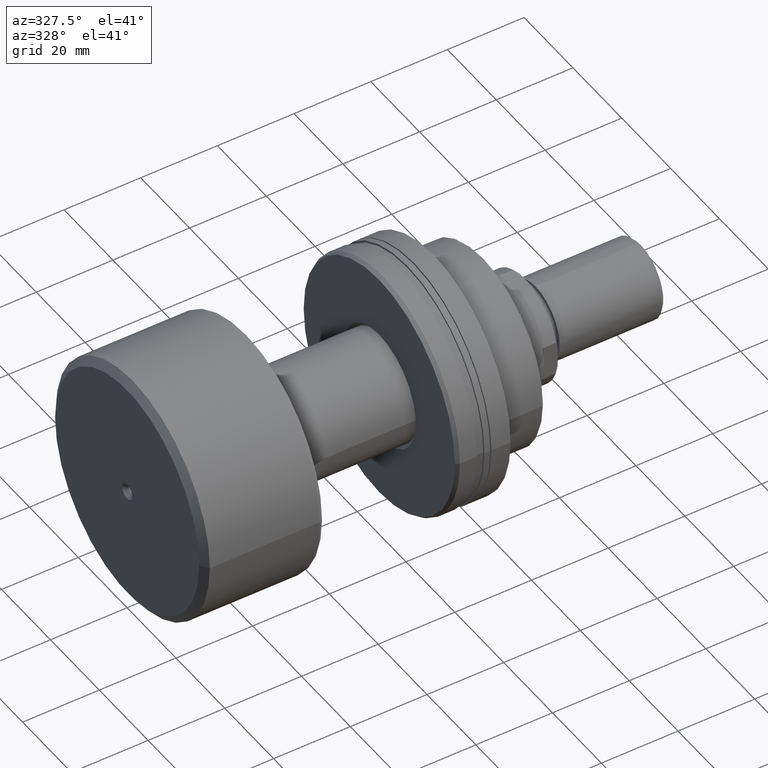
[diagram: clean part render]
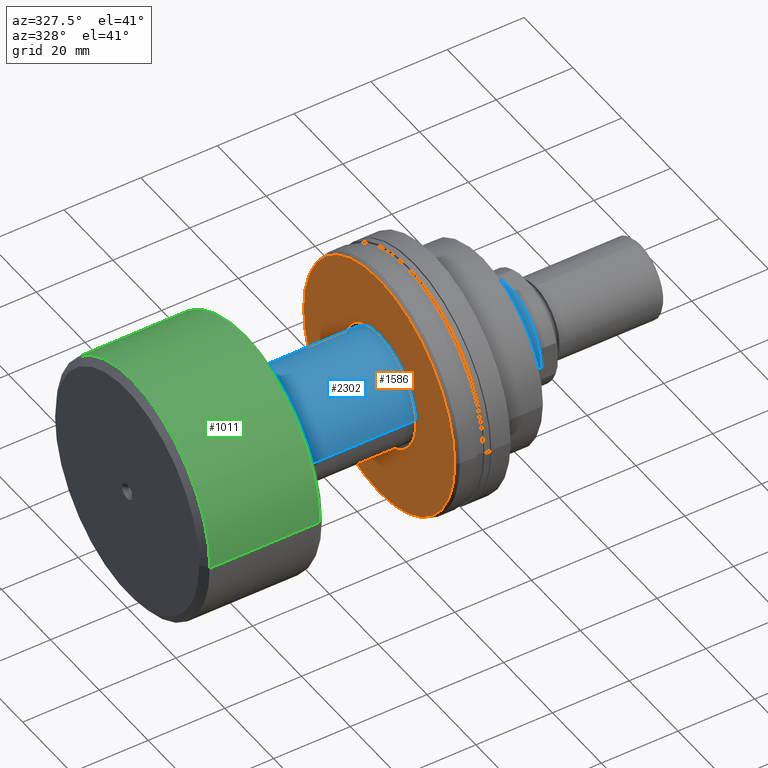
[diagram: same view with three faces highlighted in distinct colors, each labeled with its STEP entity id]
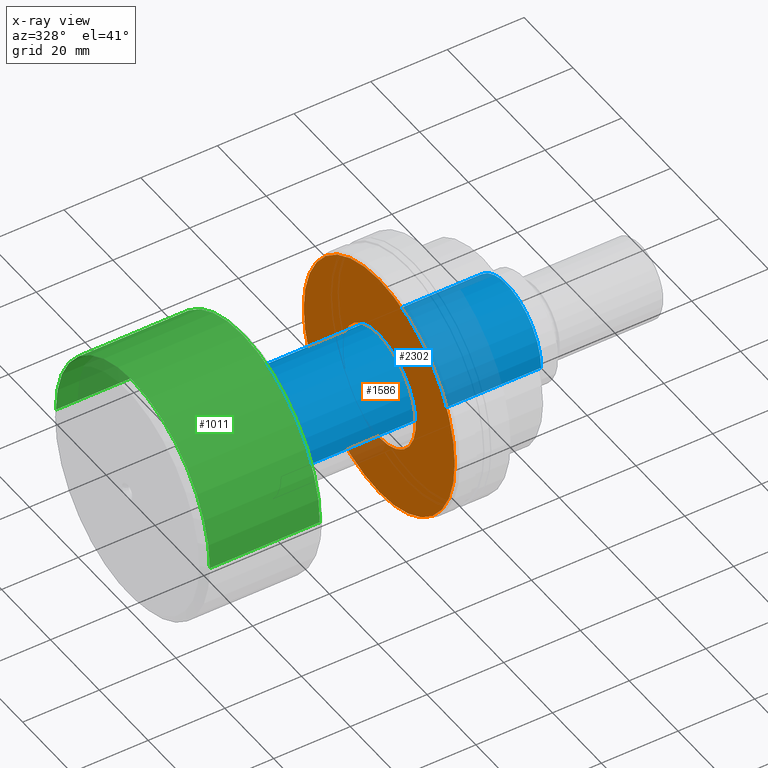
[diagram: x-ray of the same camera — body ghosted, the three highlighted faces saturated]
A machine part, auxiliary view with three faces highlighted in distinct colors.
The next image is the same camera in x-ray (body ghosted, the three faces saturated) — at least one of them is partly hidden behind the body in this view.
Their STEP definitions:

[orange] entity #1586 — the highlighted planar face has unit normal (1, 0, 0).
#80 = VERTEX_POINT ( 'NONE', #2254 ) ;
#247 = CARTESIAN_POINT ( 'NONE',  ( -32.20000000000005258, -3.708233295962754354E-15, 0.000000000000000000 ) ) ;
#312 = DIRECTION ( 'NONE',  ( -1.850371707708588449E-15, 1.000000000000000000, 0.000000000000000000 ) ) ;
#332 = DIRECTION ( 'NONE',  ( -1.931394410353556421E-15, 1.000000000000000000, 0.000000000000000000 ) ) ;
#352 = AXIS2_PLACEMENT_3D ( 'NONE', #247, #1961, #1097 ) ;
#378 = DIRECTION ( 'NONE',  ( 1.000000000000000000, 1.931394410353556421E-15, -0.000000000000000000 ) ) ;
#393 = DIRECTION ( 'NONE',  ( -1.850371707708588449E-15, 1.000000000000000000, 0.000000000000000000 ) ) ;
#474 = AXIS2_PLACEMENT_3D ( 'NONE', #1437, #1617, #332 ) ;
#550 = FACE_BOUND ( 'NONE', #2666, .T. ) ;
#889 = DIRECTION ( 'NONE',  ( 1.000000000000000000, 1.931394410353556421E-15, -0.000000000000000000 ) ) ;
#925 = ORIENTED_EDGE ( 'NONE', *, *, #1165, .T. ) ;
#963 = CARTESIAN_POINT ( 'NONE',  ( -32.20000000000001705, 0.000000000000000000, 0.000000000000000000 ) ) ;
#1020 = CIRCLE ( 'NONE', #1148, 15.00000000000004796 ) ;
#1022 = CIRCLE ( 'NONE', #2004, 30.92264973081047330 ) ;
#1032 = PLANE ( 'NONE',  #474 ) ;
#1097 = DIRECTION ( 'NONE',  ( -2.019556722299304144E-15, 1.000000000000000000, 0.000000000000000000 ) ) ;
#1102 = CARTESIAN_POINT ( 'NONE',  ( -32.20000000000005258, -3.708233295962754354E-15, 0.000000000000000000 ) ) ;
#1148 = AXIS2_PLACEMENT_3D ( 'NONE', #1453, #378, #393 ) ;
#1165 = EDGE_CURVE ( 'NONE', #2772, #1995, #1020, .T. ) ;
#1187 = ORIENTED_EDGE ( 'NONE', *, *, #2478, .F. ) ;
#1211 = CIRCLE ( 'NONE', #1917, 15.00000000000004796 ) ;
#1278 = CARTESIAN_POINT ( 'NONE',  ( -32.20000000000001705, 0.000000000000000000, 15.00000000000001776 ) ) ;
#1437 = CARTESIAN_POINT ( 'NONE',  ( -32.20000000000001705, -3.708233295962696767E-15, 0.000000000000000000 ) ) ;
#1453 = CARTESIAN_POINT ( 'NONE',  ( -32.20000000000001705, 0.000000000000000000, 0.000000000000000000 ) ) ;
#1496 = EDGE_CURVE ( 'NONE', #2598, #80, #1022, .T. ) ;
#1586 = ADVANCED_FACE ( 'NONE', ( #550, #1878 ), #1032, .F. ) ;
#1609 = CARTESIAN_POINT ( 'NONE',  ( -32.20000000000011653, 30.92264973081046975, 0.000000000000000000 ) ) ;
#1617 = DIRECTION ( 'NONE',  ( 1.000000000000000000, 1.931394410353556421E-15, -0.000000000000000000 ) ) ;
#1834 = ORIENTED_EDGE ( 'NONE', *, *, #1496, .F. ) ;
#1878 = FACE_OUTER_BOUND ( 'NONE', #2746, .T. ) ;
#1889 = CARTESIAN_POINT ( 'NONE',  ( -32.20000000000001705, 1.836970198721031955E-15, -15.00000000000001776 ) ) ;
#1917 = AXIS2_PLACEMENT_3D ( 'NONE', #963, #2252, #312 ) ;
#1961 = DIRECTION ( 'NONE',  ( 1.000000000000000000, 1.931394410353556421E-15, -0.000000000000000000 ) ) ;
#1995 = VERTEX_POINT ( 'NONE', #1889 ) ;
#2004 = AXIS2_PLACEMENT_3D ( 'NONE', #1102, #889, #2469 ) ;
#2252 = DIRECTION ( 'NONE',  ( 1.000000000000000000, 1.931394410353556421E-15, -0.000000000000000000 ) ) ;
#2254 = CARTESIAN_POINT ( 'NONE',  ( -32.19999999999999574, -30.92264973081047685, 3.822284909356672259E-15 ) ) ;
#2344 = ORIENTED_EDGE ( 'NONE', *, *, #2614, .T. ) ;
#2382 = CIRCLE ( 'NONE', #352, 30.92264973081047330 ) ;
#2469 = DIRECTION ( 'NONE',  ( -2.019556722299304144E-15, 1.000000000000000000, 0.000000000000000000 ) ) ;
#2478 = EDGE_CURVE ( 'NONE', #80, #2598, #2382, .T. ) ;
#2598 = VERTEX_POINT ( 'NONE', #1609 ) ;
#2614 = EDGE_CURVE ( 'NONE', #1995, #2772, #1211, .T. ) ;
#2666 = EDGE_LOOP ( 'NONE', ( #925, #2344 ) ) ;
#2746 = EDGE_LOOP ( 'NONE', ( #1834, #1187 ) ) ;
#2772 = VERTEX_POINT ( 'NONE', #1278 ) ;

[blue] entity #2302 — the highlighted cylindrical surface (partial cylindrical patch) has radius 14 mm, axis along (-1, -0, -0).
#85 = AXIS2_PLACEMENT_3D ( 'NONE', #2685, #755, #2038 ) ;
#141 = ORIENTED_EDGE ( 'NONE', *, *, #1366, .T. ) ;
#188 = EDGE_LOOP ( 'NONE', ( #141, #2697, #2629, #807 ) ) ;
#227 = CARTESIAN_POINT ( 'NONE',  ( 99.06675751232378957, 1.059560898695838428E-15, 0.000000000000000000 ) ) ;
#561 = CYLINDRICAL_SURFACE ( 'NONE', #85, 14.00000000000009592 ) ;
#708 = CIRCLE ( 'NONE', #1071, 13.99999999999999822 ) ;
#755 = DIRECTION ( 'NONE',  ( -1.000000000000000000, -1.069542322069065801E-17, -0.000000000000000000 ) ) ;
#807 = ORIENTED_EDGE ( 'NONE', *, *, #1416, .F. ) ;
#924 = VECTOR ( 'NONE', #1550, 1000.000000000000000 ) ;
#967 = FACE_OUTER_BOUND ( 'NONE', #188, .T. ) ;
#1071 = AXIS2_PLACEMENT_3D ( 'NONE', #1130, #2628, #1768 ) ;
#1080 = DIRECTION ( 'NONE',  ( -1.000000000000000000, -1.069542322069065801E-17, -0.000000000000000000 ) ) ;
#1130 = CARTESIAN_POINT ( 'NONE',  ( 31.19999999999999929, 3.336972044855484916E-16, 0.000000000000000000 ) ) ;
#1330 = CARTESIAN_POINT ( 'NONE',  ( 1.497359250896702259E-16, -14.00000000000009592, 0.000000000000000000 ) ) ;
#1366 = EDGE_CURVE ( 'NONE', #2473, #1873, #2728, .T. ) ;
#1416 = EDGE_CURVE ( 'NONE', #2473, #1989, #1975, .T. ) ;
#1522 = CARTESIAN_POINT ( 'NONE',  ( 31.19999999999999929, -13.99999999999999822, 0.000000000000000000 ) ) ;
#1550 = DIRECTION ( 'NONE',  ( -1.000000000000000000, -1.069542322069065801E-17, -0.000000000000000000 ) ) ;
#1768 = DIRECTION ( 'NONE',  ( 0.000000000000000000, -1.000000000000000000, 0.000000000000000000 ) ) ;
#1817 = CARTESIAN_POINT ( 'NONE',  ( 31.19999999999999929, 13.99999999999999822, 1.714505518806300357E-15 ) ) ;
#1873 = VERTEX_POINT ( 'NONE', #2274 ) ;
#1975 = LINE ( 'NONE', #1330, #924 ) ;
#1989 = VERTEX_POINT ( 'NONE', #1522 ) ;
#2038 = DIRECTION ( 'NONE',  ( 1.069542322069065647E-17, -1.000000000000000000, 0.000000000000000000 ) ) ;
#2111 = DIRECTION ( 'NONE',  ( 0.000000000000000000, -1.000000000000000000, 0.000000000000000000 ) ) ;
#2175 = CARTESIAN_POINT ( 'NONE',  ( 99.06675751232378957, -14.00000000000019362, 0.000000000000000000 ) ) ;
#2274 = CARTESIAN_POINT ( 'NONE',  ( 99.06675751232378957, 14.00000000000019540, 1.714505518806318501E-15 ) ) ;
#2296 = VERTEX_POINT ( 'NONE', #1817 ) ;
#2302 = ADVANCED_FACE ( 'NONE', ( #967 ), #561, .T. ) ;
#2404 = CARTESIAN_POINT ( 'NONE',  ( -1.497359250896702259E-16, 14.00000000000009592, 1.714505518806306274E-15 ) ) ;
#2405 = EDGE_CURVE ( 'NONE', #1873, #2296, #2603, .T. ) ;
#2466 = AXIS2_PLACEMENT_3D ( 'NONE', #227, #1080, #2111 ) ;
#2471 = VECTOR ( 'NONE', #2618, 1000.000000000000000 ) ;
#2473 = VERTEX_POINT ( 'NONE', #2175 ) ;
#2500 = EDGE_CURVE ( 'NONE', #1989, #2296, #708, .T. ) ;
#2603 = LINE ( 'NONE', #2404, #2471 ) ;
#2618 = DIRECTION ( 'NONE',  ( -1.000000000000000000, -1.069542322069065801E-17, -0.000000000000000000 ) ) ;
#2628 = DIRECTION ( 'NONE',  ( -1.000000000000000000, -1.069542322069065801E-17, -0.000000000000000000 ) ) ;
#2629 = ORIENTED_EDGE ( 'NONE', *, *, #2500, .F. ) ;
#2685 = CARTESIAN_POINT ( 'NONE',  ( 0.000000000000000000, 0.000000000000000000, 0.000000000000000000 ) ) ;
#2697 = ORIENTED_EDGE ( 'NONE', *, *, #2405, .T. ) ;
#2728 = CIRCLE ( 'NONE', #2466, 14.00000000000019540 ) ;

[green] entity #1011 — the highlighted cylindrical surface (partial cylindrical patch) has radius 31.5 mm, axis along (-1, -0, -0).
#164 = CARTESIAN_POINT ( 'NONE',  ( 1.500000000000003553, 1.604313483103602168E-17, 0.000000000000000000 ) ) ;
#257 = FACE_OUTER_BOUND ( 'NONE', #1184, .T. ) ;
#367 = EDGE_CURVE ( 'NONE', #1079, #572, #2168, .T. ) ;
#383 = CIRCLE ( 'NONE', #974, 31.50000000000000000 ) ;
#429 = CARTESIAN_POINT ( 'NONE',  ( 3.369058314517557588E-16, -31.50000000000000000, 0.000000000000000000 ) ) ;
#540 = DIRECTION ( 'NONE',  ( -1.000000000000000000, -1.069542322069065801E-17, -0.000000000000000000 ) ) ;
#572 = VERTEX_POINT ( 'NONE', #731 ) ;
#731 = CARTESIAN_POINT ( 'NONE',  ( 1.500000000000003331, 31.50000000000000000, 0.000000000000000000 ) ) ;
#792 = ORIENTED_EDGE ( 'NONE', *, *, #367, .F. ) ;
#810 = DIRECTION ( 'NONE',  ( 1.376764663473656463E-17, -1.000000000000000000, 0.000000000000000000 ) ) ;
#932 = CARTESIAN_POINT ( 'NONE',  ( 30.19999999999999929, 31.50000000000000000, 3.857637417314162689E-15 ) ) ;
#959 = ORIENTED_EDGE ( 'NONE', *, *, #2197, .T. ) ;
#974 = AXIS2_PLACEMENT_3D ( 'NONE', #1606, #540, #1397 ) ;
#1011 = ADVANCED_FACE ( 'NONE', ( #257 ), #1112, .T. ) ;
#1061 = AXIS2_PLACEMENT_3D ( 'NONE', #1174, #1831, #2721 ) ;
#1079 = VERTEX_POINT ( 'NONE', #1186 ) ;
#1105 = EDGE_CURVE ( 'NONE', #2319, #2662, #383, .T. ) ;
#1112 = CYLINDRICAL_SURFACE ( 'NONE', #1061, 31.50000000000000000 ) ;
#1174 = CARTESIAN_POINT ( 'NONE',  ( 0.000000000000000000, 0.000000000000000000, 0.000000000000000000 ) ) ;
#1184 = EDGE_LOOP ( 'NONE', ( #2713, #959, #792, #2201 ) ) ;
#1186 = CARTESIAN_POINT ( 'NONE',  ( 1.500000000000003775, -31.50000000000000000, 3.857637417314162689E-15 ) ) ;
#1266 = DIRECTION ( 'NONE',  ( -1.000000000000000000, -1.069542322069065801E-17, -0.000000000000000000 ) ) ;
#1277 = EDGE_CURVE ( 'NONE', #2319, #1079, #2569, .T. ) ;
#1347 = DIRECTION ( 'NONE',  ( -1.000000000000000000, -1.069542322069065801E-17, -0.000000000000000000 ) ) ;
#1397 = DIRECTION ( 'NONE',  ( 0.000000000000000000, -1.000000000000000000, 0.000000000000000000 ) ) ;
#1406 = CARTESIAN_POINT ( 'NONE',  ( 30.19999999999999929, -31.50000000000000000, 0.000000000000000000 ) ) ;
#1606 = CARTESIAN_POINT ( 'NONE',  ( 30.19999999999999929, 3.230017812648578475E-16, 0.000000000000000000 ) ) ;
#1750 = AXIS2_PLACEMENT_3D ( 'NONE', #164, #2540, #810 ) ;
#1804 = LINE ( 'NONE', #2621, #2242 ) ;
#1831 = DIRECTION ( 'NONE',  ( -1.000000000000000000, -1.069542322069065801E-17, -0.000000000000000000 ) ) ;
#2002 = VECTOR ( 'NONE', #1266, 1000.000000000000000 ) ;
#2168 = CIRCLE ( 'NONE', #1750, 31.50000000000000000 ) ;
#2197 = EDGE_CURVE ( 'NONE', #2662, #572, #1804, .T. ) ;
#2201 = ORIENTED_EDGE ( 'NONE', *, *, #1277, .F. ) ;
#2242 = VECTOR ( 'NONE', #1347, 1000.000000000000000 ) ;
#2319 = VERTEX_POINT ( 'NONE', #1406 ) ;
#2540 = DIRECTION ( 'NONE',  ( -1.000000000000000000, -1.069542322069065801E-17, -0.000000000000000000 ) ) ;
#2569 = LINE ( 'NONE', #429, #2002 ) ;
#2621 = CARTESIAN_POINT ( 'NONE',  ( -3.369058314517557588E-16, 31.50000000000000000, 3.857637417314162689E-15 ) ) ;
#2662 = VERTEX_POINT ( 'NONE', #932 ) ;
#2713 = ORIENTED_EDGE ( 'NONE', *, *, #1105, .T. ) ;
#2721 = DIRECTION ( 'NONE',  ( 1.069542322069065955E-17, -1.000000000000000000, 0.000000000000000000 ) ) ;